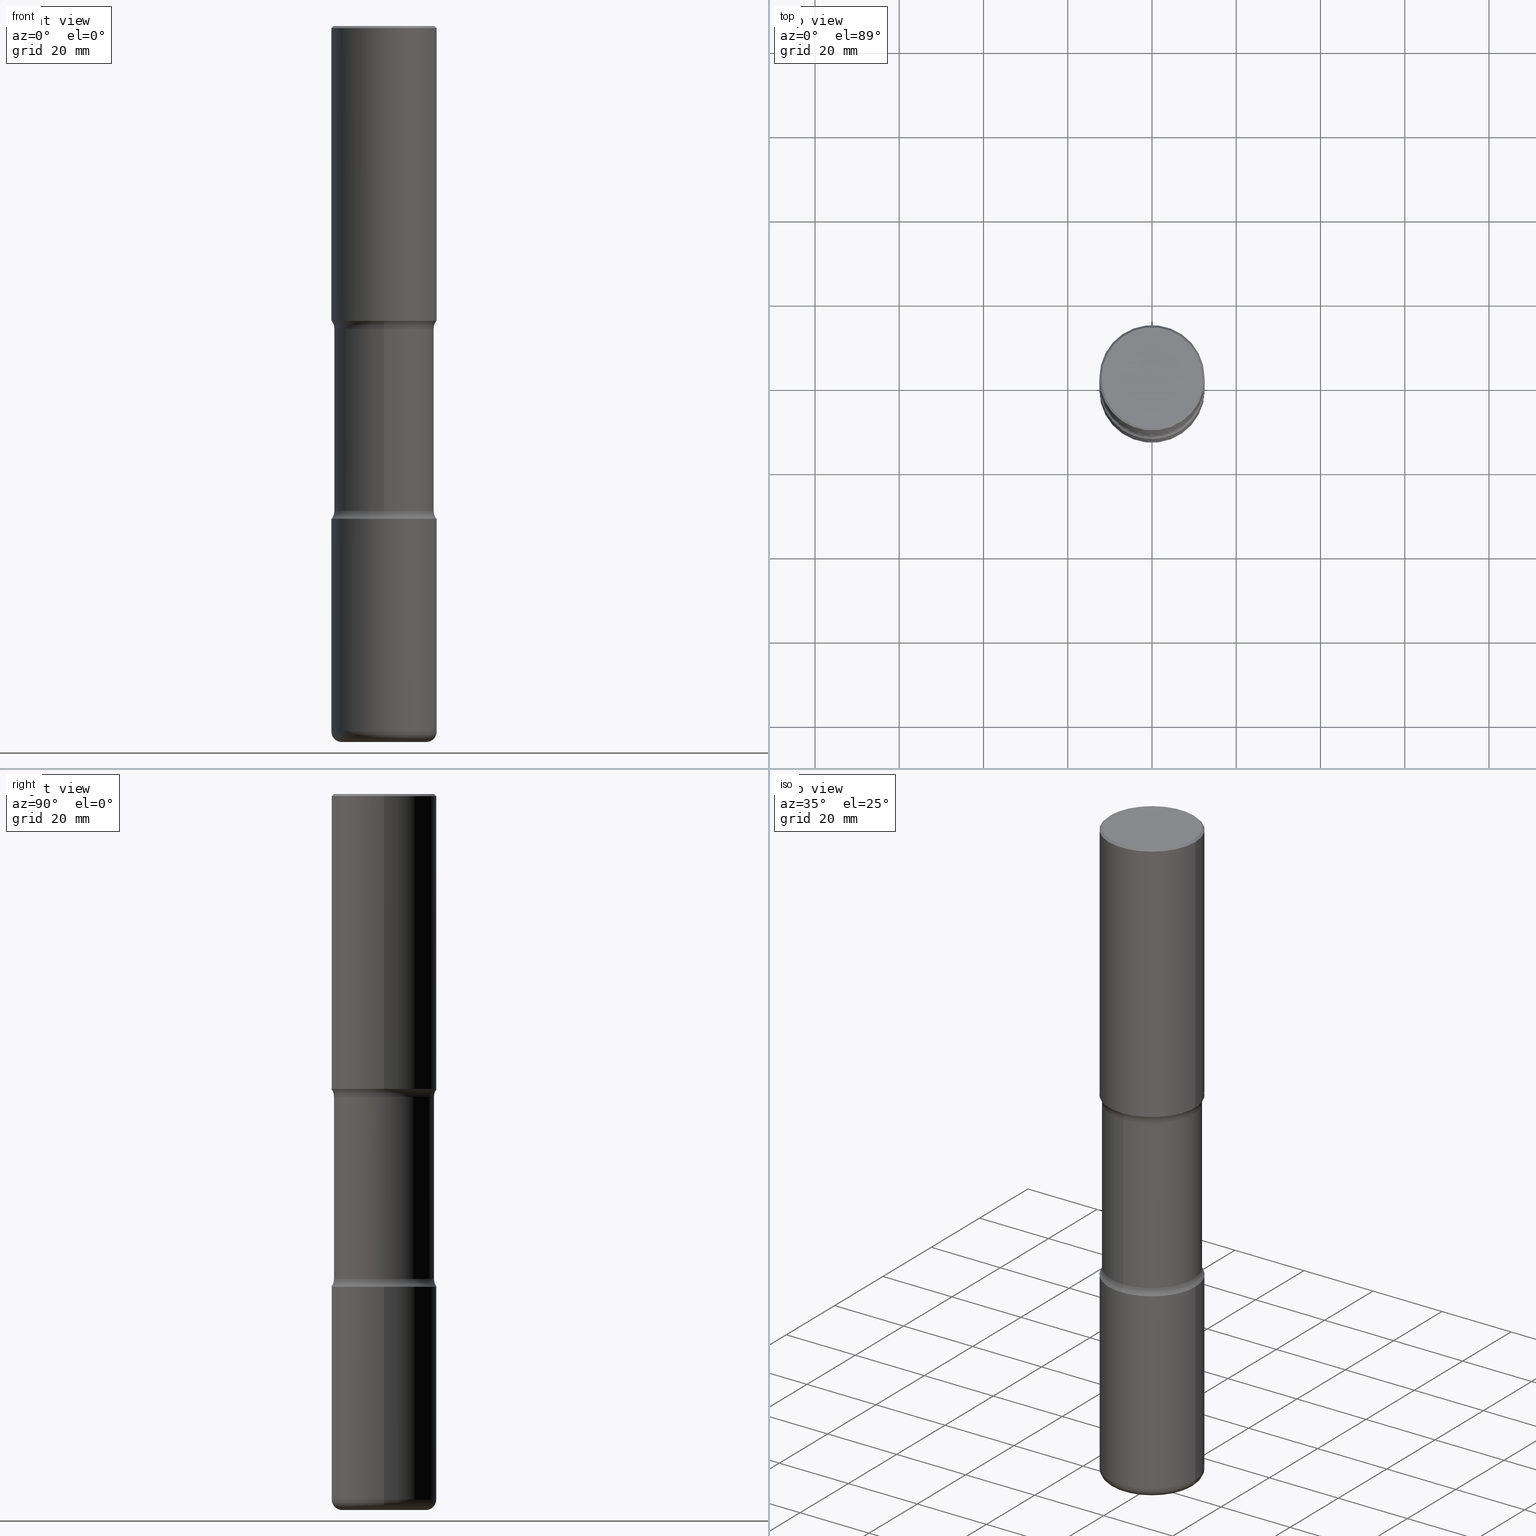
[diagram: canonical four-view strip — front | top / right | iso, engineering-drawing reading convention]
A machine part, canonical four-view strip (front | top / right | iso — engineering-drawing reading convention). The complete STEP part file that produces these views, byte-faithful:
ISO-10303-21;
HEADER;
FILE_DESCRIPTION (( 'STEP AP203' ),
    '1' );
FILE_NAME ('47778.STEP',
    '2024-03-02T09:06:14',
    ( '' ),
    ( '' ),
    'SwSTEP 2.0',
    'SolidWorks 2023',
    '' );
FILE_SCHEMA (( 'CONFIG_CONTROL_DESIGN' ));
ENDSEC;

DATA;
#1 = AXIS2_PLACEMENT_3D ( 'NONE', #307, #481, #180 ) ;
#2 = TOROIDAL_SURFACE ( 'NONE', #425, 0.5925000000000002487, 0.1250000000000001943 ) ;
#3 = CC_DESIGN_APPROVAL ( #295, ( #514 ) ) ;
#4 = EDGE_LOOP ( 'NONE', ( #524, #110 ) ) ;
#5 = EDGE_CURVE ( 'NONE', #221, #25, #423, .T. ) ;
#6 = CARTESIAN_POINT ( 'NONE',  ( 3.297005828269569180E-15, 0.4721499999999998476, -1.642100145399640064E-15 ) ) ;
#7 = CARTESIAN_POINT ( 'NONE',  ( 0.4921500000000003650, -3.436665081823298538E-15, 2.399810400207971564E-29 ) ) ;
#8 = VERTEX_POINT ( 'NONE', #339 ) ;
#9 = DIRECTION ( 'NONE',  ( 0.7071067811865471286, -7.319954787623254468E-15, -0.7071067811865479058 ) ) ;
#10 = DIMENSIONAL_EXPONENTS ( 1.000000000000000000, 0.000000000000000000, 0.000000000000000000, 0.000000000000000000, 0.000000000000000000, 0.000000000000000000, 0.000000000000000000 ) ;
#11 = AXIS2_PLACEMENT_3D ( 'NONE', #38, #550, #498 ) ;
#12 = APPROVAL_PERSON_ORGANIZATION ( #399, #295, #395 ) ;
#13 = ORIENTED_EDGE ( 'NONE', *, *, #89, .F. ) ;
#14 = CARTESIAN_POINT ( 'NONE',  ( -4.064845063679562684E-15, -0.5925000000000099076, -2.830431050576250662 ) ) ;
#15 = ADVANCED_FACE ( 'NONE', ( #547 ), #324, .T. ) ;
#16 = ORIENTED_EDGE ( 'NONE', *, *, #276, .F. ) ;
#17 = PRODUCT_DEFINITION_SHAPE ( 'NONE', 'NONE',  #124 ) ;
#18 = CARTESIAN_POINT ( 'NONE',  ( 0.4921500000000008646, -2.646123877082442695E-14, -6.594500000000000028 ) ) ;
#19 = EDGE_LOOP ( 'NONE', ( #455, #236 ) ) ;
#20 = CC_DESIGN_PERSON_AND_ORGANIZATION_ASSIGNMENT ( #309, #233, ( #514 ) ) ;
#21 = AXIS2_PLACEMENT_3D ( 'NONE', #235, #297, #82 ) ;
#22 = DIRECTION ( 'NONE',  ( 2.438088387897960049E-29, -3.491481338843145188E-15, -1.000000000000000000 ) ) ;
#23 = DIRECTION ( 'NONE',  ( 2.445468806185136597E-29, -3.491481338843145583E-15, -1.000000000000000000 ) ) ;
#24 = EDGE_CURVE ( 'NONE', #208, #441, #375, .T. ) ;
#25 = VERTEX_POINT ( 'NONE', #18 ) ;
#26 = CYLINDRICAL_SURFACE ( 'NONE', #505, 0.4921500000000000874 ) ;
#27 = FACE_OUTER_BOUND ( 'NONE', #172, .T. ) ;
#28 = FACE_OUTER_BOUND ( 'NONE', #48, .T. ) ;
#29 = APPROVAL ( #88, 'UNSPECIFIED' ) ;
#30 = CALENDAR_DATE ( 2024, 2, 3 ) ;
#31 = DIRECTION ( 'NONE',  ( 1.000000000000000000, -6.982962677686265922E-15, 0.000000000000000000 ) ) ;
#32 = CARTESIAN_POINT ( 'NONE',  ( 3.264535051818397450E-15, 0.4674999999999899791, -2.830431050576254215 ) ) ;
#33 = EDGE_CURVE ( 'NONE', #300, #387, #170, .T. ) ;
#34 = ORIENTED_EDGE ( 'NONE', *, *, #130, .T. ) ;
#35 = CIRCLE ( 'NONE', #44, 0.4921499999999999209 ) ;
#36 = ORIENTED_EDGE ( 'NONE', *, *, #362, .F. ) ;
#37 = DIRECTION ( 'NONE',  ( -1.000000000000000000, 6.982962677686265922E-15, 0.000000000000000000 ) ) ;
#38 = CARTESIAN_POINT ( 'NONE',  ( 0.3937500000000005440, -2.577411524334009474E-14, -6.594500000000000028 ) ) ;
#39 = ORIENTED_EDGE ( 'NONE', *, *, #462, .F. ) ;
#40 = CYLINDRICAL_SURFACE ( 'NONE', #21, 0.4921500000000003650 ) ;
#41 = CIRCLE ( 'NONE', #432, 0.4921500000000003650 ) ;
#42 = CIRCLE ( 'NONE', #402, 0.4921500000000002539 ) ;
#43 = EDGE_CURVE ( 'NONE', #497, #387, #315, .T. ) ;
#44 = AXIS2_PLACEMENT_3D ( 'NONE', #66, #237, #31 ) ;
#45 = ORIENTED_EDGE ( 'NONE', *, *, #168, .F. ) ;
#46 = DATE_TIME_ROLE ( 'creation_date' ) ;
#47 = FACE_OUTER_BOUND ( 'NONE', #500, .T. ) ;
#48 = EDGE_LOOP ( 'NONE', ( #559, #340, #532, #251 ) ) ;
#49 = DIRECTION ( 'NONE',  ( 2.478950746902978790E-29, -3.443533294061476764E-15, -1.000000000000000000 ) ) ;
#50 = DIRECTION ( 'NONE',  ( 2.438088387897960049E-29, -3.491481338843145188E-15, -1.000000000000000000 ) ) ;
#51 = EDGE_CURVE ( 'NONE', #97, #300, #246, .T. ) ;
#52 = AXIS2_PLACEMENT_3D ( 'NONE', #416, #296, #203 ) ;
#53 = EDGE_LOOP ( 'NONE', ( #316, #45 ) ) ;
#54 = APPROVAL_DATE_TIME ( #265, #29 ) ;
#55 = CARTESIAN_POINT ( 'NONE',  ( 3.264535051818492903E-15, 0.4674999999999766009, -6.692899999999999849 ) ) ;
#56 = DIRECTION ( 'NONE',  ( -2.445468806185136597E-29, 3.491481338843145583E-15, 1.000000000000000000 ) ) ;
#57 = DIRECTION ( 'NONE',  ( 1.000000000000000000, -6.982962677686265922E-15, 4.876176775795935793E-29 ) ) ;
#58 = ORIENTED_EDGE ( 'NONE', *, *, #484, .F. ) ;
#59 = EDGE_CURVE ( 'NONE', #441, #221, #536, .T. ) ;
#60 = DIRECTION ( 'NONE',  ( -2.445468806185136597E-29, 3.491481338843145583E-15, 1.000000000000000000 ) ) ;
#61 = AXIS2_PLACEMENT_3D ( 'NONE', #420, #453, #162 ) ;
#62 = CARTESIAN_POINT ( 'NONE',  ( 4.603020045655095245E-29, -1.268168775098301850E-14, -2.755899999999998684 ) ) ;
#63 = AXIS2_PLACEMENT_3D ( 'NONE', #133, #518, #252 ) ;
#64 = PERSON_AND_ORGANIZATION_ROLE ( 'classification_officer' ) ;
#65 = CARTESIAN_POINT ( 'NONE',  ( 1.107980415843712738E-28, -1.582616033701247086E-14, -4.531768949423746307 ) ) ;
#66 = CARTESIAN_POINT ( 'NONE',  ( 4.890937612370289799E-31, -6.982962677686315028E-17, -0.02000000000000006981 ) ) ;
#67 = CARTESIAN_POINT ( 'NONE',  ( 6.677512499861319986E-29, -9.710896483781819618E-15, -2.755899999999998684 ) ) ;
#68 = MANIFOLD_SOLID_BREP ( 'Body-Move/Copy2[2]', #72 ) ;
#69 = CARTESIAN_POINT ( 'NONE',  ( 1.636727817291650190E-28, -2.336813545274329412E-14, -6.692900000000000738 ) ) ;
#70 = DIRECTION ( 'NONE',  ( 2.478950746902978790E-29, -3.443533294061476764E-15, -1.000000000000000000 ) ) ;
#71 = CC_DESIGN_DATE_AND_TIME_ASSIGNMENT ( #121, #382, ( #467 ) ) ;
#72 = CLOSED_SHELL ( 'NONE', ( #212, #504, #331, #160, #262, #409 ) ) ;
#73 = PERSON_AND_ORGANIZATION ( #266, #403 ) ;
#74 = AXIS2_PLACEMENT_3D ( 'NONE', #470, #23, #37 ) ;
#75 = APPROVAL_PERSON_ORGANIZATION ( #302, #438, #390 ) ;
#76 = CARTESIAN_POINT ( 'NONE',  ( 0.000000000000000000, 0.000000000000000000, 0.000000000000000000 ) ) ;
#77 = DIRECTION ( 'NONE',  ( 6.982962677686266711E-15, 1.000000000000000000, -3.443533294061476764E-15 ) ) ;
#78 = DIRECTION ( 'NONE',  ( 1.000000000000000000, -6.982962677686265922E-15, 4.876176775795935793E-29 ) ) ;
#79 = ORIENTED_EDGE ( 'NONE', *, *, #43, .T. ) ;
#80 = CARTESIAN_POINT ( 'NONE',  ( -0.4921500000000002539, -1.349065450204005425E-15, -2.755899999999998240 ) ) ;
#81 = LINE ( 'NONE', #7, #239 ) ;
#82 = DIRECTION ( 'NONE',  ( 1.000000000000000000, -6.982962677686266711E-15, 4.876176775795935793E-29 ) ) ;
#83 = ADVANCED_FACE ( 'NONE', ( #308 ), #452, .F. ) ;
#84 = APPLICATION_PROTOCOL_DEFINITION ( 'international standard', 'config_control_design', 1994, #519 ) ;
#85 = PLANE ( 'NONE',  #284 ) ;
#86 = AXIS2_PLACEMENT_3D ( 'NONE', #69, #461, #459 ) ;
#87 = ORIENTED_EDGE ( 'NONE', *, *, #446, .T. ) ;
#88 = APPROVAL_STATUS ( 'not_yet_approved' ) ;
#89 = EDGE_CURVE ( 'NONE', #184, #8, #132, .T. ) ;
#90 = EDGE_LOOP ( 'NONE', ( #434, #87, #127, #210 ) ) ;
#91 = DIRECTION ( 'NONE',  ( 1.000000000000000000, -6.982962677686270655E-15, 0.000000000000000000 ) ) ;
#92 = MANIFOLD_SOLID_BREP ( 'Body-Move/Copy2[1]', #384 ) ;
#93 = AXIS2_PLACEMENT_3D ( 'NONE', #118, #463, #232 ) ;
#94 = AXIS2_PLACEMENT_3D ( 'NONE', #428, #289, #241 ) ;
#95 = CALENDAR_DATE ( 2024, 2, 3 ) ;
#96 = DIRECTION ( 'NONE',  ( 6.982962677686265922E-15, 1.000000000000000000, -3.330506545156063496E-15 ) ) ;
#97 = VERTEX_POINT ( 'NONE', #234 ) ;
#98 = APPROVAL_DATE_TIME ( #312, #295 ) ;
#99 = DIRECTION ( 'NONE',  ( 6.982962677686266711E-15, 1.000000000000000000, -3.506115072082477581E-15 ) ) ;
#100 = EDGE_CURVE ( 'NONE', #109, #398, #223, .T. ) ;
#101 = DIRECTION ( 'NONE',  ( 2.478950746902979070E-29, -3.443533294061476764E-15, -1.000000000000000000 ) ) ;
#102 = PERSON_AND_ORGANIZATION ( #266, #403 ) ;
#103 = DIRECTION ( 'NONE',  ( -0.7071067811865471286, 2.468850131082252722E-15, -0.7071067811865479058 ) ) ;
#104 = AXIS2_PLACEMENT_3D ( 'NONE', #268, #525, #527 ) ;
#105 = AXIS2_PLACEMENT_3D ( 'NONE', #65, #325, #249 ) ;
#106 = VECTOR ( 'NONE', #501, 39.37007874015748143 ) ;
#107 = LOCAL_TIME ( 4, 6, 14.00000000000000000, #179 ) ;
#108 = CARTESIAN_POINT ( 'NONE',  ( -0.4921500000000003650, 3.496936074043335658E-15, -2.420853904668953751E-29 ) ) ;
#109 = VERTEX_POINT ( 'NONE', #350 ) ;
#110 = ORIENTED_EDGE ( 'NONE', *, *, #446, .F. ) ;
#111 = FACE_OUTER_BOUND ( 'NONE', #539, .T. ) ;
#112 = DIRECTION ( 'NONE',  ( -2.478950746902978509E-29, 3.443533294061476764E-15, 1.000000000000000000 ) ) ;
#113 = PLANE ( 'NONE',  #206 ) ;
#114 = FACE_OUTER_BOUND ( 'NONE', #517, .T. ) ;
#115 = CLOSED_SHELL ( 'NONE', ( #281, #451, #492, #226, #400, #83, #468, #15 ) ) ;
#116 = CIRCLE ( 'NONE', #86, 0.3937500000000005440 ) ;
#117 = DIRECTION ( 'NONE',  ( 6.982962677686265922E-15, 1.000000000000000000, -3.443533294061476764E-15 ) ) ;
#118 = CARTESIAN_POINT ( 'NONE',  ( 1.636727817291650190E-28, -2.336813545274329412E-14, -6.692900000000000738 ) ) ;
#119 = CARTESIAN_POINT ( 'NONE',  ( -3.291838451780614217E-15, -0.4675000000000157918, -4.531768949423744530 ) ) ;
#120 = ADVANCED_FACE ( 'NONE', ( #393 ), #528, .T. ) ;
#121 = DATE_AND_TIME ( #30, #207 ) ;
#122 = CARTESIAN_POINT ( 'NONE',  ( -0.3937500000000005440, -2.004900552282284051E-14, -6.692900000000000738 ) ) ;
#123 = FACE_OUTER_BOUND ( 'NONE', #4, .T. ) ;
#124 = PRODUCT_DEFINITION ( 'UNKNOWN', '', #514, #310 ) ;
#125 = EDGE_LOOP ( 'NONE', ( #174, #211, #469, #365 ) ) ;
#126 = AXIS2_PLACEMENT_3D ( 'NONE', #464, #414, #77 ) ;
#127 = ORIENTED_EDGE ( 'NONE', *, *, #540, .T. ) ;
#128 = FACE_OUTER_BOUND ( 'NONE', #145, .T. ) ;
#129 = FACE_OUTER_BOUND ( 'NONE', #90, .T. ) ;
#130 = EDGE_CURVE ( 'NONE', #398, #197, #354, .T. ) ;
#131 = ORIENTED_EDGE ( 'NONE', *, *, #520, .F. ) ;
#132 = CIRCLE ( 'NONE', #274, 0.1250000000000000278 ) ;
#133 = CARTESIAN_POINT ( 'NONE',  ( 0.000000000000000000, 0.000000000000000000, 0.000000000000000000 ) ) ;
#134 = CARTESIAN_POINT ( 'NONE',  ( -4.064845063679523241E-15, -0.5925000000000161249, -4.531768949423743642 ) ) ;
#135 = CONICAL_SURFACE ( 'NONE', #74, 0.4921499999999999209, 0.7853981633974477239 ) ;
#136 = EDGE_CURVE ( 'NONE', #558, #109, #458, .T. ) ;
#137 = ORIENTED_EDGE ( 'NONE', *, *, #511, .T. ) ;
#138 = DIRECTION ( 'NONE',  ( -2.445468806185136597E-29, 3.491481338843145583E-15, 1.000000000000000000 ) ) ;
#139 = ORIENTED_EDGE ( 'NONE', *, *, #59, .F. ) ;
#140 =( NAMED_UNIT ( * ) SI_UNIT ( $, .STERADIAN. ) SOLID_ANGLE_UNIT ( ) );
#141 = DIRECTION ( 'NONE',  ( -2.445468806185136877E-29, 3.491481338843145188E-15, 1.000000000000000000 ) ) ;
#142 = AXIS2_PLACEMENT_3D ( 'NONE', #165, #386, #250 ) ;
#143 = AXIS2_PLACEMENT_3D ( 'NONE', #412, #22, #557 ) ;
#144 = DIRECTION ( 'NONE',  ( -1.000000000000000000, 6.982962677686265922E-15, -4.876176775795935793E-29 ) ) ;
#145 = EDGE_LOOP ( 'NONE', ( #151, #510, #392, #258 ) ) ;
#146 = CALENDAR_DATE ( 2024, 2, 3 ) ;
#147 = LINE ( 'NONE', #491, #254 ) ;
#148 = EDGE_CURVE ( 'NONE', #548, #197, #404, .T. ) ;
#149 = AXIS2_PLACEMENT_3D ( 'NONE', #195, #401, #457 ) ;
#150 = CONICAL_SURFACE ( 'NONE', #230, 0.4921499999999999209, 0.7853981633974477239 ) ;
#151 = ORIENTED_EDGE ( 'NONE', *, *, #51, .F. ) ;
#152 = FACE_OUTER_BOUND ( 'NONE', #413, .T. ) ;
#153 = FACE_OUTER_BOUND ( 'NONE', #163, .T. ) ;
#154 = ORIENTED_EDGE ( 'NONE', *, *, #478, .F. ) ;
#155 = FACE_OUTER_BOUND ( 'NONE', #125, .T. ) ;
#156 = CARTESIAN_POINT ( 'NONE',  ( 1.126456296193059450E-28, -1.608281049111318039E-14, -4.606299999999999173 ) ) ;
#157 = CARTESIAN_POINT ( 'NONE',  ( 4.890937612370289799E-31, -6.982962677686315028E-17, -0.02000000000000006981 ) ) ;
#158 = VECTOR ( 'NONE', #424, 39.37007874015748143 ) ;
#159 = DIRECTION ( 'NONE',  ( 2.478950746902978790E-29, -3.443533294061476764E-15, -1.000000000000000000 ) ) ;
#160 = ADVANCED_FACE ( 'NONE', ( #47 ), #396, .F. ) ;
#161 = CARTESIAN_POINT ( 'NONE',  ( -0.4921500000000002539, -1.605675601601381657E-14, -4.606299999999999173 ) ) ;
#162 = DIRECTION ( 'NONE',  ( 6.982962677686266711E-15, 1.000000000000000000, -3.506115072082477581E-15 ) ) ;
#163 = EDGE_LOOP ( 'NONE', ( #189, #39 ) ) ;
#164 = DIRECTION ( 'NONE',  ( 1.000000000000000000, -6.982962677686270655E-15, 0.000000000000000000 ) ) ;
#165 = CARTESIAN_POINT ( 'NONE',  ( 1.612664404238788252E-28, -2.302457368900112328E-14, -6.594500000000000028 ) ) ;
#166 = ORIENTED_EDGE ( 'NONE', *, *, #168, .T. ) ;
#167 = CARTESIAN_POINT ( 'NONE',  ( 1.103460862120198560E-28, -1.589088291870342293E-14, -4.531768949423746307 ) ) ;
#168 = EDGE_CURVE ( 'NONE', #8, #551, #41, .T. ) ;
#169 = FACE_OUTER_BOUND ( 'NONE', #53, .T. ) ;
#170 = CIRCLE ( 'NONE', #149, 0.1250000000000001665 ) ;
#171 = AXIS2_PLACEMENT_3D ( 'NONE', #288, #176, #431 ) ;
#172 = EDGE_LOOP ( 'NONE', ( #531, #215, #181, #16 ) ) ;
#173 = DIRECTION ( 'NONE',  ( 6.860497997771532351E-15, 1.000000000000000000, 0.000000000000000000 ) ) ;
#174 = ORIENTED_EDGE ( 'NONE', *, *, #290, .T. ) ;
#175 = LENGTH_MEASURE_WITH_UNIT ( LENGTH_MEASURE( 0.02539999999999999897 ), #343 );
#176 = DIRECTION ( 'NONE',  ( -1.000000000000000000, 6.982962677686265922E-15, -4.883557194083112340E-29 ) ) ;
#177 = ADVANCED_FACE ( 'NONE', ( #191 ), #406, .F. ) ;
#178 = CIRCLE ( 'NONE', #61, 0.4674999999999999156 ) ;
#179 = COORDINATED_UNIVERSAL_TIME_OFFSET ( 5, 0, .BEHIND. ) ;
#180 = DIRECTION ( 'NONE',  ( 1.000000000000000000, -6.982962677686264344E-15, 4.883557194083112340E-29 ) ) ;
#181 = ORIENTED_EDGE ( 'NONE', *, *, #202, .F. ) ;
#182 = EDGE_CURVE ( 'NONE', #335, #387, #253, .T. ) ;
#183 = CARTESIAN_POINT ( 'NONE',  ( 1.126456296193059450E-28, -1.608281049111318039E-14, -4.606299999999999173 ) ) ;
#184 = VERTEX_POINT ( 'NONE', #270 ) ;
#185 = UNCERTAINTY_MEASURE_WITH_UNIT (LENGTH_MEASURE( 1.000000000000000082E-05 ), #349, 'distance_accuracy_value', 'NONE');
#186 = CARTESIAN_POINT ( 'NONE',  ( 4.890937612370289799E-31, -6.982962677686315028E-17, -0.02000000000000006981 ) ) ;
#187 = AXIS2_PLACEMENT_3D ( 'NONE', #445, #50, #360 ) ;
#188 = AXIS2_PLACEMENT_3D ( 'NONE', #534, #229, #99 ) ;
#189 = ORIENTED_EDGE ( 'NONE', *, *, #24, .F. ) ;
#190 = PERSON_AND_ORGANIZATION_ROLE ( 'creator' ) ;
#191 = FACE_OUTER_BOUND ( 'NONE', #380, .T. ) ;
#192 = EDGE_CURVE ( 'NONE', #558, #197, #147, .T. ) ;
#193 = CARTESIAN_POINT ( 'NONE',  ( 0.000000000000000000, 0.000000000000000000, 0.000000000000000000 ) ) ;
#194 = CARTESIAN_POINT ( 'NONE',  ( 0.000000000000000000, 0.000000000000000000, 0.000000000000000000 ) ) ;
#195 = CARTESIAN_POINT ( 'NONE',  ( 4.137405386529224571E-15, 0.5924999999999843725, -4.531768949423748083 ) ) ;
#196 = LINE ( 'NONE', #108, #106 ) ;
#197 = VERTEX_POINT ( 'NONE', #273 ) ;
#198 = CARTESIAN_POINT ( 'NONE',  ( 3.436665081823365591E-15, 0.4921499999999907060, -2.755900000000000460 ) ) ;
#199 = ORIENTED_EDGE ( 'NONE', *, *, #484, .T. ) ;
#200 = DIRECTION ( 'NONE',  ( 6.982962677686265133E-15, 1.000000000000000000, -3.443533294061477159E-15 ) ) ;
#201 = CARTESIAN_POINT ( 'NONE',  ( 1.612664404238788252E-28, -2.302457368900112328E-14, -6.594500000000000028 ) ) ;
#202 = EDGE_CURVE ( 'NONE', #269, #552, #415, .T. ) ;
#203 = DIRECTION ( 'NONE',  ( 6.982962677686266711E-15, 1.000000000000000000, -3.443533294061476764E-15 ) ) ;
#204 = CARTESIAN_POINT ( 'NONE',  ( 6.739467482965614869E-29, -9.622173421717819657E-15, -2.755899999999998240 ) ) ;
#205 = VECTOR ( 'NONE', #9, 39.37007874015748143 ) ;
#206 = AXIS2_PLACEMENT_3D ( 'NONE', #62, #515, #117 ) ;
#207 = LOCAL_TIME ( 4, 6, 14.00000000000000000, #503 ) ;
#208 = VERTEX_POINT ( 'NONE', #419 ) ;
#209 = CARTESIAN_POINT ( 'NONE',  ( -0.4721499999999998476, 3.331920641658000829E-15, 1.280553747027805488E-17 ) ) ;
#210 = ORIENTED_EDGE ( 'NONE', *, *, #217, .F. ) ;
#211 = ORIENTED_EDGE ( 'NONE', *, *, #148, .T. ) ;
#212 = ADVANCED_FACE ( 'NONE', ( #155 ), #26, .T. ) ;
#213 = DIRECTION ( 'NONE',  ( 1.000000000000000000, -6.982962677686266711E-15, 4.876176775795935793E-29 ) ) ;
#214 = DIRECTION ( 'NONE',  ( 1.000000000000000000, -6.982962677686265922E-15, 4.876176775795935793E-29 ) ) ;
#215 = ORIENTED_EDGE ( 'NONE', *, *, #377, .T. ) ;
#216 = DIRECTION ( 'NONE',  ( 1.000000000000000000, -6.860497997771530774E-15, 4.841386073819815477E-29 ) ) ;
#217 = EDGE_CURVE ( 'NONE', #197, #398, #35, .T. ) ;
#218 = AXIS2_PLACEMENT_3D ( 'NONE', #286, #509, #321 ) ;
#219 = PERSON_AND_ORGANIZATION ( #266, #403 ) ;
#220 = CARTESIAN_POINT ( 'NONE',  ( 6.739467482965614869E-29, -9.622173421717819657E-15, -2.755899999999998240 ) ) ;
#221 = VERTEX_POINT ( 'NONE', #373 ) ;
#222 = AXIS2_PLACEMENT_3D ( 'NONE', #167, #378, #374 ) ;
#223 = LINE ( 'NONE', #225, #205 ) ;
#224 = APPROVAL_STATUS ( 'not_yet_approved' ) ;
#225 = CARTESIAN_POINT ( 'NONE',  ( 0.4921499999999999209, -3.446223716380121955E-15, -0.02000000000000006981 ) ) ;
#226 = ADVANCED_FACE ( 'NONE', ( #330 ), #366, .F. ) ;
#227 = CALENDAR_DATE ( 2024, 2, 3 ) ;
#228 = COORDINATED_UNIVERSAL_TIME_OFFSET ( 5, 0, .BEHIND. ) ;
#229 = DIRECTION ( 'NONE',  ( 2.478950746902978790E-29, -3.443533294061476764E-15, -1.000000000000000000 ) ) ;
#230 = AXIS2_PLACEMENT_3D ( 'NONE', #157, #326, #507 ) ;
#231 = EDGE_CURVE ( 'NONE', #497, #551, #264, .T. ) ;
#232 = DIRECTION ( 'NONE',  ( 1.000000000000000000, -6.982962677686266711E-15, 0.000000000000000000 ) ) ;
#233 = PERSON_AND_ORGANIZATION_ROLE ( 'design_supplier' ) ;
#234 = CARTESIAN_POINT ( 'NONE',  ( -3.376394089603147821E-15, -0.4921500000000163522, -4.606299999999997397 ) ) ;
#235 = CARTESIAN_POINT ( 'NONE',  ( 0.000000000000000000, 0.000000000000000000, 0.000000000000000000 ) ) ;
#236 = ORIENTED_EDGE ( 'NONE', *, *, #51, .T. ) ;
#237 = DIRECTION ( 'NONE',  ( -2.445468806185136597E-29, 3.491481338843145583E-15, 1.000000000000000000 ) ) ;
#238 = AXIS2_PLACEMENT_3D ( 'NONE', #277, #353, #530 ) ;
#239 = VECTOR ( 'NONE', #287, 39.37007874015748143 ) ;
#240 = ORIENTED_EDGE ( 'NONE', *, *, #320, .T. ) ;
#241 = DIRECTION ( 'NONE',  ( 6.982962677686266711E-15, 1.000000000000000000, -3.330506545156064285E-15 ) ) ;
#242 = EDGE_CURVE ( 'NONE', #97, #335, #449, .T. ) ;
#243 = DIRECTION ( 'NONE',  ( 6.982962677686265922E-15, 1.000000000000000000, -3.330506545156063496E-15 ) ) ;
#244 = CARTESIAN_POINT ( 'NONE',  ( 1.643714159041834644E-28, -2.326808706250185533E-14, -6.692899999999998961 ) ) ;
#245 = DIRECTION ( 'NONE',  ( 6.982962677686265922E-15, 1.000000000000000000, -2.337410048054985186E-15 ) ) ;
#246 = CIRCLE ( 'NONE', #544, 0.4921500000000002539 ) ;
#247 = CC_DESIGN_SECURITY_CLASSIFICATION ( #467, ( #514 ) ) ;
#248 = EDGE_CURVE ( 'NONE', #109, #558, #433, .T. ) ;
#249 = DIRECTION ( 'NONE',  ( 6.982962677686266711E-15, 1.000000000000000000, -3.506115072082477581E-15 ) ) ;
#250 = DIRECTION ( 'NONE',  ( 1.000000000000000000, -6.982962677686266711E-15, 0.000000000000000000 ) ) ;
#251 = ORIENTED_EDGE ( 'NONE', *, *, #217, .T. ) ;
#252 = DIRECTION ( 'NONE',  ( 1.000000000000000000, 0.000000000000000000, 0.000000000000000000 ) ) ;
#253 = CIRCLE ( 'NONE', #188, 0.4674999999999999156 ) ;
#254 = VECTOR ( 'NONE', #103, 39.37007874015748143 ) ;
#255 = ORIENTED_EDGE ( 'NONE', *, *, #192, .F. ) ;
#256 =( NAMED_UNIT ( * ) PLANE_ANGLE_UNIT ( ) SI_UNIT ( $, .RADIAN. ) );
#257 = DIRECTION ( 'NONE',  ( -2.438088387897960049E-29, 3.491481338843145188E-15, 1.000000000000000000 ) ) ;
#258 = ORIENTED_EDGE ( 'NONE', *, *, #33, .F. ) ;
#259 = APPROVAL_ROLE ( '' ) ;
#260 = CC_DESIGN_PERSON_AND_ORGANIZATION_ASSIGNMENT ( #219, #523, ( #407 ) ) ;
#261 = ORIENTED_EDGE ( 'NONE', *, *, #478, .T. ) ;
#262 = ADVANCED_FACE ( 'NONE', ( #123 ), #85, .F. ) ;
#263 = ORIENTED_EDGE ( 'NONE', *, *, #320, .F. ) ;
#264 = CIRCLE ( 'NONE', #171, 0.1250000000000000278 ) ;
#265 = DATE_AND_TIME ( #95, #476 ) ;
#266 = PERSON ( 'UNSPECIFIED', 'UNSPECIFIED', 'UNSPECIFIED', ('UNSPECIFIED'), ('UNSPECIFIED'), ('UNSPECIFIED') ) ;
#267 = ORIENTED_EDGE ( 'NONE', *, *, #341, .T. ) ;
#268 = CARTESIAN_POINT ( 'NONE',  ( -3.131554243005659264E-46, 4.471029511141341874E-32, 1.280553747030123384E-17 ) ) ;
#269 = VERTEX_POINT ( 'NONE', #437 ) ;
#270 = CARTESIAN_POINT ( 'NONE',  ( -3.291838451780658393E-15, -0.4675000000000099076, -2.830431050576251106 ) ) ;
#271 = ORIENTED_EDGE ( 'NONE', *, *, #304, .F. ) ;
#272 = PERSON_AND_ORGANIZATION_ROLE ( 'creator' ) ;
#273 = CARTESIAN_POINT ( 'NONE',  ( -0.4921499999999999209, 3.366835455046432084E-15, -0.02000000000000006981 ) ) ;
#274 = AXIS2_PLACEMENT_3D ( 'NONE', #14, #352, #347 ) ;
#275 = CIRCLE ( 'NONE', #345, 0.4921500000000002539 ) ;
#276 = EDGE_CURVE ( 'NONE', #25, #269, #81, .T. ) ;
#277 = CARTESIAN_POINT ( 'NONE',  ( -0.3937500000000005440, -2.022681166694572691E-14, -6.594500000000000028 ) ) ;
#278 = CARTESIAN_POINT ( 'NONE',  ( 3.264535051818439654E-15, 0.4674999999999840949, -4.531768949423748083 ) ) ;
#279 = ORIENTED_EDGE ( 'NONE', *, *, #5, .T. ) ;
#280 = ORIENTED_EDGE ( 'NONE', *, *, #231, .F. ) ;
#281 = ADVANCED_FACE ( 'NONE', ( #152 ), #322, .T. ) ;
#282 = DIRECTION ( 'NONE',  ( 2.478950746902978790E-29, -3.443533294061476764E-15, -1.000000000000000000 ) ) ;
#283 = VECTOR ( 'NONE', #141, 39.37007874015748143 ) ;
#284 = AXIS2_PLACEMENT_3D ( 'NONE', #220, #257, #214 ) ;
#285 = DIRECTION ( 'NONE',  ( 6.982962677686265922E-15, 1.000000000000000000, -2.337410048054985186E-15 ) ) ;
#286 = CARTESIAN_POINT ( 'NONE',  ( 6.739467482965614869E-29, -9.622173421717819657E-15, -2.755899999999998240 ) ) ;
#287 = DIRECTION ( 'NONE',  ( -2.445468806185136877E-29, 3.491481338843145188E-15, 1.000000000000000000 ) ) ;
#288 = CARTESIAN_POINT ( 'NONE',  ( 4.137405386529180395E-15, 0.5924999999999898126, -2.830431050576255103 ) ) ;
#289 = DIRECTION ( 'NONE',  ( 2.478950746902978790E-29, -3.443533294061476764E-15, -1.000000000000000000 ) ) ;
#290 = EDGE_CURVE ( 'NONE', #383, #548, #42, .T. ) ;
#291 = EDGE_LOOP ( 'NONE', ( #13, #36, #389, #137 ) ) ;
#292 = CARTESIAN_POINT ( 'NONE',  ( -3.207282813958025392E-15, -0.4675000000000231748, -6.692899999999998073 ) ) ;
#293 = AXIS2_PLACEMENT_3D ( 'NONE', #6, #485, #144 ) ;
#294 = CYLINDRICAL_SURFACE ( 'NONE', #344, 0.4921500000000000874 ) ;
#295 = APPROVAL ( #224, 'UNSPECIFIED' ) ;
#296 = DIRECTION ( 'NONE',  ( 2.478950746902978790E-29, -3.443533294061476764E-15, -1.000000000000000000 ) ) ;
#297 = DIRECTION ( 'NONE',  ( -2.445468806185136597E-29, 3.491481338843145583E-15, 1.000000000000000000 ) ) ;
#298 = CARTESIAN_POINT ( 'NONE',  ( 1.643714159041834644E-28, -2.326808706250185533E-14, -6.692899999999998961 ) ) ;
#299 = TOROIDAL_SURFACE ( 'NONE', #52, 0.5924999999999999156, 0.1250000000000000278 ) ;
#300 = VERTEX_POINT ( 'NONE', #371 ) ;
#301 = APPLICATION_PROTOCOL_DEFINITION ( 'international standard', 'config_control_design', 1994, #543 ) ;
#302 = PERSON_AND_ORGANIZATION ( #266, #403 ) ;
#303 = CARTESIAN_POINT ( 'NONE',  ( 1.126456296193059450E-28, -1.608281049111318039E-14, -4.606299999999999173 ) ) ;
#304 = EDGE_CURVE ( 'NONE', #25, #221, #306, .T. ) ;
#305 = EDGE_LOOP ( 'NONE', ( #486, #447, #34, #255 ) ) ;
#306 = CIRCLE ( 'NONE', #522, 0.4921500000000005315 ) ;
#307 = CARTESIAN_POINT ( 'NONE',  ( 1.612664404238788252E-28, -2.302457368900112328E-14, -6.594500000000000028 ) ) ;
#308 = FACE_OUTER_BOUND ( 'NONE', #19, .T. ) ;
#309 = PERSON_AND_ORGANIZATION ( #266, #403 ) ;
#310 = DESIGN_CONTEXT ( 'detailed design', #543, 'design' ) ;
#311 = ORIENTED_EDGE ( 'NONE', *, *, #182, .F. ) ;
#312 = DATE_AND_TIME ( #488, #338 ) ;
#313 = DIRECTION ( 'NONE',  ( -6.982962677686265922E-15, -1.000000000000000000, 3.443533294061476764E-15 ) ) ;
#314 = EDGE_CURVE ( 'NONE', #184, #497, #178, .T. ) ;
#315 = LINE ( 'NONE', #55, #482 ) ;
#316 = ORIENTED_EDGE ( 'NONE', *, *, #511, .F. ) ;
#317 = LOCAL_TIME ( 4, 6, 14.00000000000000000, #533 ) ;
#318 = ORIENTED_EDGE ( 'NONE', *, *, #136, .T. ) ;
#319 = CARTESIAN_POINT ( 'NONE',  ( 1.126456296193059450E-28, -1.608281049111318039E-14, -4.606299999999999173 ) ) ;
#320 = EDGE_CURVE ( 'NONE', #552, #269, #275, .T. ) ;
#321 = DIRECTION ( 'NONE',  ( 1.000000000000000000, -6.982962677686266711E-15, 0.000000000000000000 ) ) ;
#322 = CYLINDRICAL_SURFACE ( 'NONE', #556, 0.4674999999999998601 ) ;
#323 = CC_DESIGN_PERSON_AND_ORGANIZATION_ASSIGNMENT ( #102, #272, ( #514 ) ) ;
#324 = CYLINDRICAL_SURFACE ( 'NONE', #521, 0.4674999999999998601 ) ;
#325 = DIRECTION ( 'NONE',  ( 2.478950746902978790E-29, -3.443533294061476764E-15, -1.000000000000000000 ) ) ;
#326 = DIRECTION ( 'NONE',  ( 2.445468806185136597E-29, -3.491481338843145583E-15, -1.000000000000000000 ) ) ;
#327 = AXIS2_PLACEMENT_3D ( 'NONE', #156, #112, #313 ) ;
#328 = CIRCLE ( 'NONE', #218, 0.4921500000000002539 ) ;
#329 = VECTOR ( 'NONE', #512, 39.37007874015748143 ) ;
#330 = FACE_OUTER_BOUND ( 'NONE', #291, .T. ) ;
#331 = ADVANCED_FACE ( 'NONE', ( #28 ), #150, .T. ) ;
#332 = DIRECTION ( 'NONE',  ( -2.445468806185136597E-29, 3.491481338843145583E-15, 1.000000000000000000 ) ) ;
#333 = CARTESIAN_POINT ( 'NONE',  ( 0.4921500000000000874, -3.436665081823296565E-15, 2.399810400207970163E-29 ) ) ;
#334 = PRODUCT_RELATED_PRODUCT_CATEGORY ( 'detail', '', ( #407 ) ) ;
#335 = VERTEX_POINT ( 'NONE', #119 ) ;
#336 = CARTESIAN_POINT ( 'NONE',  ( 1.103460862120198560E-28, -1.589088291870342293E-14, -4.531768949423746307 ) ) ;
#337 = CIRCLE ( 'NONE', #466, 0.4921500000000003650 ) ;
#338 = LOCAL_TIME ( 4, 6, 14.00000000000000000, #228 ) ;
#339 = CARTESIAN_POINT ( 'NONE',  ( -3.376394089603194759E-15, -0.4921500000000101349, -2.755899999999997352 ) ) ;
#340 = ORIENTED_EDGE ( 'NONE', *, *, #136, .F. ) ;
#341 = EDGE_CURVE ( 'NONE', #208, #25, #494, .T. ) ;
#342 = ORIENTED_EDGE ( 'NONE', *, *, #314, .F. ) ;
#343 =( LENGTH_UNIT ( ) NAMED_UNIT ( * ) SI_UNIT ( $, .METRE. ) );
#344 = AXIS2_PLACEMENT_3D ( 'NONE', #194, #56, #78 ) ;
#345 = AXIS2_PLACEMENT_3D ( 'NONE', #319, #460, #164 ) ;
#346 = ORIENTED_EDGE ( 'NONE', *, *, #377, .F. ) ;
#347 = DIRECTION ( 'NONE',  ( 6.860497997771528407E-15, 1.000000000000000000, 0.000000000000000000 ) ) ;
#348 = ORIENTED_EDGE ( 'NONE', *, *, #59, .T. ) ;
#349 =( CONVERSION_BASED_UNIT ( 'INCH', #175 ) LENGTH_UNIT ( ) NAMED_UNIT ( #10 ) );
#350 = CARTESIAN_POINT ( 'NONE',  ( 0.4721499999999998476, -3.342703923013974974E-15, 1.280553747032445131E-17 ) ) ;
#351 = EDGE_LOOP ( 'NONE', ( #154, #554, #79, #311 ) ) ;
#352 = DIRECTION ( 'NONE',  ( 1.000000000000000000, -6.860497997771530774E-15, 4.841386073819815477E-29 ) ) ;
#353 = DIRECTION ( 'NONE',  ( 7.105427357601001859E-15, 1.000000000000000000, -3.491481338843145583E-15 ) ) ;
#354 = CIRCLE ( 'NONE', #555, 0.4921499999999999209 ) ;
#355 = EDGE_LOOP ( 'NONE', ( #439, #348, #271, #473 ) ) ;
#356 = TOROIDAL_SURFACE ( 'NONE', #222, 0.5925000000000002487, 0.1250000000000001943 ) ;
#357 = DIRECTION ( 'NONE',  ( 6.982962677686266711E-15, 1.000000000000000000, -3.330506545156064285E-15 ) ) ;
#358 = ADVANCED_FACE ( 'NONE', ( #111 ), #440, .T. ) ;
#359 = ORIENTED_EDGE ( 'NONE', *, *, #89, .T. ) ;
#360 = DIRECTION ( 'NONE',  ( -1.000000000000000000, 6.982962677686265922E-15, -4.876176775795935793E-29 ) ) ;
#361 = ORIENTED_EDGE ( 'NONE', *, *, #276, .T. ) ;
#362 = EDGE_CURVE ( 'NONE', #497, #184, #385, .T. ) ;
#363 = SECURITY_CLASSIFICATION_LEVEL ( 'unclassified' ) ;
#364 = DIRECTION ( 'NONE',  ( -2.445468806185136597E-29, 3.491481338843145583E-15, 1.000000000000000000 ) ) ;
#365 = ORIENTED_EDGE ( 'NONE', *, *, #540, .F. ) ;
#366 = TOROIDAL_SURFACE ( 'NONE', #126, 0.5924999999999999156, 0.1250000000000000278 ) ;
#367 = ADVANCED_FACE ( 'NONE', ( #153 ), #496, .T. ) ;
#368 = CARTESIAN_POINT ( 'NONE',  ( 0.4921499999999999209, -3.446223716380121955E-15, -0.02000000000000006981 ) ) ;
#369 = CARTESIAN_POINT ( 'NONE',  ( 6.862271303354788236E-29, -9.967546637882530720E-15, -2.830431050576252883 ) ) ;
#370 = DIRECTION ( 'NONE',  ( 2.478950746902978790E-29, -3.443533294061476764E-15, -1.000000000000000000 ) ) ;
#371 = CARTESIAN_POINT ( 'NONE',  ( 3.436665081823409767E-15, 0.4921499999999841002, -4.606300000000000949 ) ) ;
#372 = ORIENTED_EDGE ( 'NONE', *, *, #248, .T. ) ;
#373 = CARTESIAN_POINT ( 'NONE',  ( -0.4921500000000008646, -1.952763761495778644E-14, -6.594500000000000028 ) ) ;
#374 = DIRECTION ( 'NONE',  ( 6.982962677686265133E-15, 1.000000000000000000, -3.443533294061477159E-15 ) ) ;
#375 = CIRCLE ( 'NONE', #93, 0.3937500000000005440 ) ;
#376 = CIRCLE ( 'NONE', #94, 0.4921500000000002539 ) ;
#377 = EDGE_CURVE ( 'NONE', #221, #552, #196, .T. ) ;
#378 = DIRECTION ( 'NONE',  ( 2.478950746902978790E-29, -3.443533294061476764E-15, -1.000000000000000000 ) ) ;
#379 = DIRECTION ( 'NONE',  ( 1.000000000000000000, -6.982962677686266711E-15, 0.000000000000000000 ) ) ;
#380 = EDGE_LOOP ( 'NONE', ( #479, #240 ) ) ;
#381 = ORIENTED_EDGE ( 'NONE', *, *, #242, .F. ) ;
#382 = DATE_TIME_ROLE ( 'classification_date' ) ;
#383 = VERTEX_POINT ( 'NONE', #471 ) ;
#384 = CLOSED_SHELL ( 'NONE', ( #526, #120, #367, #358, #422, #177 ) ) ;
#385 = CIRCLE ( 'NONE', #391, 0.4674999999999999156 ) ;
#386 = DIRECTION ( 'NONE',  ( -2.445468806185136597E-29, 3.491481338843145583E-15, 1.000000000000000000 ) ) ;
#387 = VERTEX_POINT ( 'NONE', #278 ) ;
#388 = ORIENTED_EDGE ( 'NONE', *, *, #462, .T. ) ;
#389 = ORIENTED_EDGE ( 'NONE', *, *, #231, .T. ) ;
#390 = APPROVAL_ROLE ( '' ) ;
#391 = AXIS2_PLACEMENT_3D ( 'NONE', #369, #454, #553 ) ;
#392 = ORIENTED_EDGE ( 'NONE', *, *, #182, .T. ) ;
#393 = FACE_OUTER_BOUND ( 'NONE', #355, .T. ) ;
#394 = ORIENTED_EDGE ( 'NONE', *, *, #362, .T. ) ;
#395 = APPROVAL_ROLE ( '' ) ;
#396 = PLANE ( 'NONE',  #293 ) ;
#397 = DATE_AND_TIME ( #227, #107 ) ;
#398 = VERTEX_POINT ( 'NONE', #368 ) ;
#399 = PERSON_AND_ORGANIZATION ( #266, #403 ) ;
#400 = ADVANCED_FACE ( 'NONE', ( #169 ), #113, .F. ) ;
#401 = DIRECTION ( 'NONE',  ( -1.000000000000000000, 6.982962677686265922E-15, -4.883557194083112340E-29 ) ) ;
#402 = AXIS2_PLACEMENT_3D ( 'NONE', #204, #411, #379 ) ;
#403 = ORGANIZATION ( 'UNSPECIFIED', 'UNSPECIFIED', '' ) ;
#404 = LINE ( 'NONE', #448, #283 ) ;
#405 = CC_DESIGN_DATE_AND_TIME_ASSIGNMENT ( #444, #46, ( #124 ) ) ;
#406 = PLANE ( 'NONE',  #187 ) ;
#407 = PRODUCT ( '47778', '47778', '', ( #560 ) ) ;
#408 = EDGE_LOOP ( 'NONE', ( #346, #279, #361, #263 ) ) ;
#409 = ADVANCED_FACE ( 'NONE', ( #129 ), #294, .T. ) ;
#410 = SHAPE_DEFINITION_REPRESENTATION ( #17, #499 ) ;
#411 = DIRECTION ( 'NONE',  ( -2.445468806185136597E-29, 3.491481338843145583E-15, 1.000000000000000000 ) ) ;
#412 = CARTESIAN_POINT ( 'NONE',  ( -9.573321274347470763E-29, -6.051655030845483128E-14, -6.692899999999999849 ) ) ;
#413 = EDGE_LOOP ( 'NONE', ( #394, #261, #58, #535 ) ) ;
#414 = DIRECTION ( 'NONE',  ( 2.478950746902978790E-29, -3.443533294061476764E-15, -1.000000000000000000 ) ) ;
#415 = CIRCLE ( 'NONE', #537, 0.4921500000000002539 ) ;
#416 = CARTESIAN_POINT ( 'NONE',  ( 6.826348879337702763E-29, -1.001898959365239917E-14, -2.830431050576252883 ) ) ;
#417 = DIRECTION ( 'NONE',  ( 1.000000000000000000, -6.982962677686264344E-15, 4.883557194083112340E-29 ) ) ;
#418 = APPROVAL_DATE_TIME ( #397, #438 ) ;
#419 = CARTESIAN_POINT ( 'NONE',  ( 0.3937500000000005440, -2.611767700708226558E-14, -6.692900000000000738 ) ) ;
#420 = CARTESIAN_POINT ( 'NONE',  ( 6.862271303354788236E-29, -9.967546637882530720E-15, -2.830431050576252883 ) ) ;
#421 = DIRECTION ( 'NONE',  ( -2.445468806185136597E-29, 3.491481338843145583E-15, 1.000000000000000000 ) ) ;
#422 = ADVANCED_FACE ( 'NONE', ( #430 ), #40, .T. ) ;
#423 = CIRCLE ( 'NONE', #142, 0.4921500000000005315 ) ;
#424 = DIRECTION ( 'NONE',  ( 2.478950746902979070E-29, -3.443533294061476764E-15, -1.000000000000000000 ) ) ;
#425 = AXIS2_PLACEMENT_3D ( 'NONE', #336, #282, #200 ) ;
#426 = APPROVAL_PERSON_ORGANIZATION ( #477, #29, #259 ) ;
#427 = CC_DESIGN_PERSON_AND_ORGANIZATION_ASSIGNMENT ( #442, #190, ( #124 ) ) ;
#428 = CARTESIAN_POINT ( 'NONE',  ( 1.126456296193059450E-28, -1.608281049111318039E-14, -4.606299999999999173 ) ) ;
#429 = DIRECTION ( 'NONE',  ( 1.000000000000000000, -6.982962677686265922E-15, 4.876006802227160734E-29 ) ) ;
#430 = FACE_OUTER_BOUND ( 'NONE', #408, .T. ) ;
#431 = DIRECTION ( 'NONE',  ( -6.982962677686265133E-15, -1.000000000000000000, 0.000000000000000000 ) ) ;
#432 = AXIS2_PLACEMENT_3D ( 'NONE', #489, #49, #96 ) ;
#433 = CIRCLE ( 'NONE', #483, 0.4721499999999998476 ) ;
#434 = ORIENTED_EDGE ( 'NONE', *, *, #148, .F. ) ;
#435 = ORIENTED_EDGE ( 'NONE', *, *, #33, .T. ) ;
#436 = COORDINATED_UNIVERSAL_TIME_OFFSET ( 5, 0, .BEHIND. ) ;
#437 = CARTESIAN_POINT ( 'NONE',  ( 0.4921500000000002539, -1.951947557293647774E-14, -4.606299999999999173 ) ) ;
#438 = APPROVAL ( #490, 'UNSPECIFIED' ) ;
#439 = ORIENTED_EDGE ( 'NONE', *, *, #24, .T. ) ;
#440 = TOROIDAL_SURFACE ( 'NONE', #513, 0.3937500000000005440, 0.09840000000000065361 ) ;
#441 = VERTEX_POINT ( 'NONE', #122 ) ;
#442 = PERSON_AND_ORGANIZATION ( #266, #403 ) ;
#443 = DIRECTION ( 'NONE',  ( 1.000000000000000000, -6.982962677686265922E-15, 0.000000000000000000 ) ) ;
#444 = DATE_AND_TIME ( #146, #317 ) ;
#445 = CARTESIAN_POINT ( 'NONE',  ( 1.126456296193059450E-28, -1.608281049111318039E-14, -4.606299999999999173 ) ) ;
#446 = EDGE_CURVE ( 'NONE', #548, #383, #328, .T. ) ;
#447 = ORIENTED_EDGE ( 'NONE', *, *, #100, .T. ) ;
#448 = CARTESIAN_POINT ( 'NONE',  ( -0.4921500000000000874, 3.496936074043333686E-15, -2.420853904668952350E-29 ) ) ;
#449 = CIRCLE ( 'NONE', #529, 0.1250000000000001665 ) ;
#450 = AXIS2_PLACEMENT_3D ( 'NONE', #76, #421, #213 ) ;
#451 = ADVANCED_FACE ( 'NONE', ( #128 ), #356, .F. ) ;
#452 = PLANE ( 'NONE',  #327 ) ;
#453 = DIRECTION ( 'NONE',  ( 2.478950746902978790E-29, -3.443533294061476764E-15, -1.000000000000000000 ) ) ;
#454 = DIRECTION ( 'NONE',  ( 2.478950746902978790E-29, -3.443533294061476764E-15, -1.000000000000000000 ) ) ;
#455 = ORIENTED_EDGE ( 'NONE', *, *, #520, .T. ) ;
#456 = CARTESIAN_POINT ( 'NONE',  ( 1.612664404238788252E-28, -2.302457368900112328E-14, -6.594500000000000028 ) ) ;
#457 = DIRECTION ( 'NONE',  ( -6.982962677686269077E-15, -1.000000000000000000, 0.000000000000000000 ) ) ;
#458 = CIRCLE ( 'NONE', #104, 0.4721499999999998476 ) ;
#459 = DIRECTION ( 'NONE',  ( 1.000000000000000000, -6.982962677686266711E-15, 0.000000000000000000 ) ) ;
#460 = DIRECTION ( 'NONE',  ( -2.445468806185136597E-29, 3.491481338843145583E-15, 1.000000000000000000 ) ) ;
#461 = DIRECTION ( 'NONE',  ( -2.445468806185136597E-29, 3.491481338843145583E-15, 1.000000000000000000 ) ) ;
#462 = EDGE_CURVE ( 'NONE', #441, #208, #116, .T. ) ;
#463 = DIRECTION ( 'NONE',  ( -2.445468806185136597E-29, 3.491481338843145583E-15, 1.000000000000000000 ) ) ;
#464 = CARTESIAN_POINT ( 'NONE',  ( 6.826348879337702763E-29, -1.001898959365239917E-14, -2.830431050576252883 ) ) ;
#465 = FACE_OUTER_BOUND ( 'NONE', #305, .T. ) ;
#466 = AXIS2_PLACEMENT_3D ( 'NONE', #67, #370, #243 ) ;
#467 = SECURITY_CLASSIFICATION ( '', '', #363 ) ;
#468 = ADVANCED_FACE ( 'NONE', ( #114 ), #2, .F. ) ;
#469 = ORIENTED_EDGE ( 'NONE', *, *, #130, .F. ) ;
#470 = CARTESIAN_POINT ( 'NONE',  ( 4.890937612370289799E-31, -6.982962677686315028E-17, -0.02000000000000006981 ) ) ;
#471 = CARTESIAN_POINT ( 'NONE',  ( 0.4921500000000002539, -1.305883850354111701E-14, -2.755899999999998240 ) ) ;
#472 = MANIFOLD_SOLID_BREP ( 'Body-Move/Copy2[4]', #115 ) ;
#473 = ORIENTED_EDGE ( 'NONE', *, *, #341, .F. ) ;
#474 = CARTESIAN_POINT ( 'NONE',  ( -3.131554243005659264E-46, 4.471029511141341874E-32, 1.280553747030123384E-17 ) ) ;
#475 = CIRCLE ( 'NONE', #105, 0.4674999999999999156 ) ;
#476 = LOCAL_TIME ( 4, 6, 14.00000000000000000, #436 ) ;
#477 = PERSON_AND_ORGANIZATION ( #266, #403 ) ;
#478 = EDGE_CURVE ( 'NONE', #184, #335, #549, .T. ) ;
#479 = ORIENTED_EDGE ( 'NONE', *, *, #202, .T. ) ;
#480 = DIRECTION ( 'NONE',  ( -2.445468806185136597E-29, 3.491481338843145583E-15, 1.000000000000000000 ) ) ;
#481 = DIRECTION ( 'NONE',  ( -2.445468806185136597E-29, 3.491481338843145583E-15, 1.000000000000000000 ) ) ;
#482 = VECTOR ( 'NONE', #101, 39.37007874015748143 ) ;
#483 = AXIS2_PLACEMENT_3D ( 'NONE', #474, #516, #429 ) ;
#484 = EDGE_CURVE ( 'NONE', #387, #335, #475, .T. ) ;
#485 = DIRECTION ( 'NONE',  ( 2.438088387897960049E-29, -3.491481338843145188E-15, -1.000000000000000000 ) ) ;
#486 = ORIENTED_EDGE ( 'NONE', *, *, #248, .F. ) ;
#487 = CC_DESIGN_PERSON_AND_ORGANIZATION_ASSIGNMENT ( #73, #64, ( #467 ) ) ;
#488 = CALENDAR_DATE ( 2024, 2, 3 ) ;
#489 = CARTESIAN_POINT ( 'NONE',  ( 6.677512499861319986E-29, -9.710896483781819618E-15, -2.755899999999998684 ) ) ;
#490 = APPROVAL_STATUS ( 'not_yet_approved' ) ;
#491 = CARTESIAN_POINT ( 'NONE',  ( -0.4921499999999999209, 3.366835455046432084E-15, -0.02000000000000006981 ) ) ;
#492 = ADVANCED_FACE ( 'NONE', ( #506 ), #299, .F. ) ;
#493 = DIRECTION ( 'NONE',  ( 2.478950746902978790E-29, -3.443533294061476764E-15, -1.000000000000000000 ) ) ;
#494 = CIRCLE ( 'NONE', #11, 0.09840000000000065361 ) ;
#495 =( GEOMETRIC_REPRESENTATION_CONTEXT ( 3 ) GLOBAL_UNCERTAINTY_ASSIGNED_CONTEXT ( ( #185 ) ) GLOBAL_UNIT_ASSIGNED_CONTEXT ( ( #349, #256, #140 ) ) REPRESENTATION_CONTEXT ( 'NONE', 'WORKASPACE' ) );
#496 = PLANE ( 'NONE',  #143 ) ;
#497 = VERTEX_POINT ( 'NONE', #32 ) ;
#498 = DIRECTION ( 'NONE',  ( 1.000000000000000000, -6.982962677686254878E-15, 0.000000000000000000 ) ) ;
#499 = ADVANCED_BREP_SHAPE_REPRESENTATION ( '47778', ( #92, #68, #472, #63 ), #495 ) ;
#500 = EDGE_LOOP ( 'NONE', ( #318, #372 ) ) ;
#501 = DIRECTION ( 'NONE',  ( -2.445468806185136877E-29, 3.491481338843145188E-15, 1.000000000000000000 ) ) ;
#502 = ORIENTED_EDGE ( 'NONE', *, *, #5, .F. ) ;
#503 = COORDINATED_UNIVERSAL_TIME_OFFSET ( 5, 0, .BEHIND. ) ;
#504 = ADVANCED_FACE ( 'NONE', ( #465 ), #135, .T. ) ;
#505 = AXIS2_PLACEMENT_3D ( 'NONE', #193, #364, #57 ) ;
#506 = FACE_OUTER_BOUND ( 'NONE', #541, .T. ) ;
#507 = DIRECTION ( 'NONE',  ( -1.000000000000000000, 6.982962677686265922E-15, 0.000000000000000000 ) ) ;
#508 = CC_DESIGN_APPROVAL ( #438, ( #467 ) ) ;
#509 = DIRECTION ( 'NONE',  ( -2.445468806185136597E-29, 3.491481338843145583E-15, 1.000000000000000000 ) ) ;
#510 = ORIENTED_EDGE ( 'NONE', *, *, #242, .T. ) ;
#511 = EDGE_CURVE ( 'NONE', #551, #8, #337, .T. ) ;
#512 = DIRECTION ( 'NONE',  ( -2.445468806185136877E-29, 3.491481338843145188E-15, 1.000000000000000000 ) ) ;
#513 = AXIS2_PLACEMENT_3D ( 'NONE', #456, #60, #417 ) ;
#514 = PRODUCT_DEFINITION_FORMATION_WITH_SPECIFIED_SOURCE ( 'ANY', '', #407, .NOT_KNOWN. ) ;
#515 = DIRECTION ( 'NONE',  ( 2.478950746902978509E-29, -3.443533294061476764E-15, -1.000000000000000000 ) ) ;
#516 = DIRECTION ( 'NONE',  ( -2.445468806185136597E-29, 3.491481338843145583E-15, 1.000000000000000000 ) ) ;
#517 = EDGE_LOOP ( 'NONE', ( #381, #131, #435, #199 ) ) ;
#518 = DIRECTION ( 'NONE',  ( 0.000000000000000000, 0.000000000000000000, 1.000000000000000000 ) ) ;
#519 = APPLICATION_CONTEXT ( 'configuration controlled 3d designs of mechanical parts and assemblies' ) ;
#520 = EDGE_CURVE ( 'NONE', #300, #97, #376, .T. ) ;
#521 = AXIS2_PLACEMENT_3D ( 'NONE', #298, #159, #285 ) ;
#522 = AXIS2_PLACEMENT_3D ( 'NONE', #201, #332, #546 ) ;
#523 = PERSON_AND_ORGANIZATION_ROLE ( 'design_owner' ) ;
#524 = ORIENTED_EDGE ( 'NONE', *, *, #290, .F. ) ;
#525 = DIRECTION ( 'NONE',  ( -2.445468806185136597E-29, 3.491481338843145583E-15, 1.000000000000000000 ) ) ;
#526 = ADVANCED_FACE ( 'NONE', ( #27 ), #542, .T. ) ;
#527 = DIRECTION ( 'NONE',  ( 1.000000000000000000, -6.982962677686265922E-15, 4.876006802227160734E-29 ) ) ;
#528 = TOROIDAL_SURFACE ( 'NONE', #1, 0.3937500000000005440, 0.09840000000000065361 ) ;
#529 = AXIS2_PLACEMENT_3D ( 'NONE', #134, #216, #173 ) ;
#530 = DIRECTION ( 'NONE',  ( -1.000000000000000000, 7.105427357601011325E-15, 0.000000000000000000 ) ) ;
#531 = ORIENTED_EDGE ( 'NONE', *, *, #304, .T. ) ;
#532 = ORIENTED_EDGE ( 'NONE', *, *, #192, .T. ) ;
#533 = COORDINATED_UNIVERSAL_TIME_OFFSET ( 5, 0, .BEHIND. ) ;
#534 = CARTESIAN_POINT ( 'NONE',  ( 1.107980415843712738E-28, -1.582616033701247086E-14, -4.531768949423746307 ) ) ;
#535 = ORIENTED_EDGE ( 'NONE', *, *, #43, .F. ) ;
#536 = CIRCLE ( 'NONE', #238, 0.09840000000000065361 ) ;
#537 = AXIS2_PLACEMENT_3D ( 'NONE', #303, #480, #91 ) ;
#538 = CC_DESIGN_APPROVAL ( #29, ( #124 ) ) ;
#539 = EDGE_LOOP ( 'NONE', ( #139, #388, #267, #502 ) ) ;
#540 = EDGE_CURVE ( 'NONE', #383, #398, #545, .T. ) ;
#541 = EDGE_LOOP ( 'NONE', ( #342, #359, #166, #280 ) ) ;
#542 = CYLINDRICAL_SURFACE ( 'NONE', #450, 0.4921500000000003650 ) ;
#543 = APPLICATION_CONTEXT ( 'configuration controlled 3d designs of mechanical parts and assemblies' ) ;
#544 = AXIS2_PLACEMENT_3D ( 'NONE', #183, #493, #357 ) ;
#545 = LINE ( 'NONE', #333, #329 ) ;
#546 = DIRECTION ( 'NONE',  ( 1.000000000000000000, -6.982962677686266711E-15, 0.000000000000000000 ) ) ;
#547 = FACE_OUTER_BOUND ( 'NONE', #351, .T. ) ;
#548 = VERTEX_POINT ( 'NONE', #80 ) ;
#549 = LINE ( 'NONE', #292, #158 ) ;
#550 = DIRECTION ( 'NONE',  ( -6.982962677686266711E-15, -1.000000000000000000, 3.491481338843145583E-15 ) ) ;
#551 = VERTEX_POINT ( 'NONE', #198 ) ;
#552 = VERTEX_POINT ( 'NONE', #161 ) ;
#553 = DIRECTION ( 'NONE',  ( 6.982962677686266711E-15, 1.000000000000000000, -3.506115072082477581E-15 ) ) ;
#554 = ORIENTED_EDGE ( 'NONE', *, *, #314, .T. ) ;
#555 = AXIS2_PLACEMENT_3D ( 'NONE', #186, #138, #443 ) ;
#556 = AXIS2_PLACEMENT_3D ( 'NONE', #244, #70, #245 ) ;
#557 = DIRECTION ( 'NONE',  ( -1.000000000000000000, 6.982962677686265922E-15, -4.876176775795935793E-29 ) ) ;
#558 = VERTEX_POINT ( 'NONE', #209 ) ;
#559 = ORIENTED_EDGE ( 'NONE', *, *, #100, .F. ) ;
#560 = MECHANICAL_CONTEXT ( 'NONE', #519, 'mechanical' ) ;
ENDSEC;
END-ISO-10303-21;
